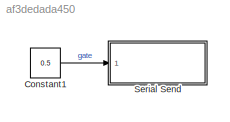
MODEL slx_af3dedada450
KIND model
CONFIG AbsTol = auto
CONFIG EnableMultiTasking = on
CONFIG FixedStep = 1e-6
CONFIG MaxStep = auto
CONFIG MinStep = auto
CONFIG RelTol = 1e-3
CONFIG SampleTimeConstraint = Unconstrained
CONFIG Solver = FixedStepDiscrete
CONFIG SolverName = FixedStepDiscrete
CONFIG StartTime = 0.0
CONFIG StopTime = Inf
BLOCK [Constant] Constant1
  Value = 0.5
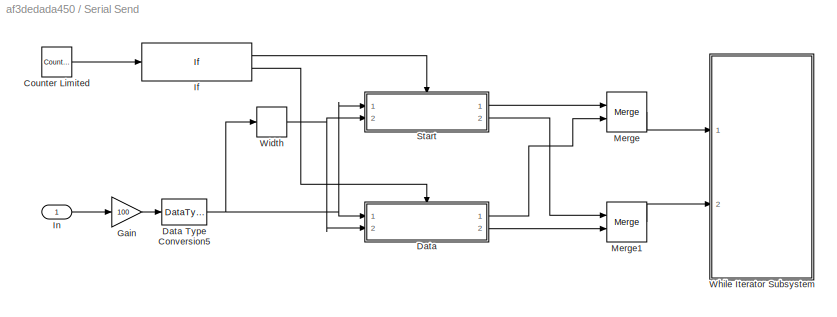
BLOCK [SubSystem] Serial Send
  Ports = [1]
  RequestExecContextInheritance = off
BLOCK [Reference] Serial Send/Counter Limited  REF=simulink/Sources/Counter
Limited
  Ports = [0, 1]
  SourceBlock = simulink/Sources/Counter\nLimited
  SourceProductBaseCode = SL
  SourceProductName = Simulink
  SourceType = Counter Limited
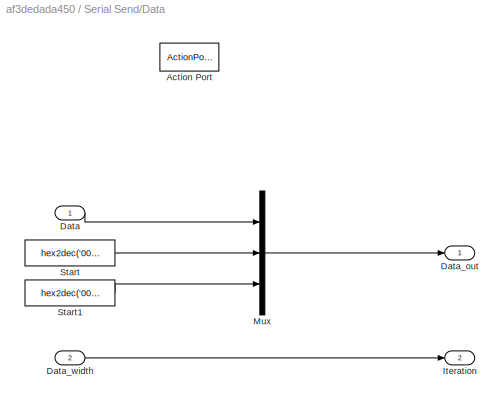
BLOCK [SubSystem] Serial Send/Data
  Ports = [2, 2, 0, 0, 0, 0, 0, 1]
  RequestExecContextInheritance = off
  TreatAsAtomicUnit = on
BLOCK [DataTypeConversion] Serial Send/Data Type Conversion5
  AttributesFormatString = DataType = %<OutDataTypeStr>
  OutDataTypeStr = int16
  RndMeth = Simplest
  SaturateOnIntegerOverflow = off
BLOCK [ActionPort] Serial Send/Data/Action Port
  ActionPortLabel = else
BLOCK [Inport] Serial Send/Data/Data
  IconDisplay = Port number
BLOCK [Outport] Serial Send/Data/Data_out
  IconDisplay = Port number
  VectorParamsAs1DForOutWhenUnconnected = off
BLOCK [Inport] Serial Send/Data/Data_width
  IconDisplay = Port number
  Port = 2
BLOCK [Outport] Serial Send/Data/Iteration
  IconDisplay = Port number
  Port = 2
  VectorParamsAs1DForOutWhenUnconnected = off
BLOCK [Mux] Serial Send/Data/Mux
  DisplayOption = bar
  Inputs = 3
  Ports = [3, 1]
BLOCK [Constant] Serial Send/Data/Start
  OutDataTypeStr = int16
  Value = hex2dec('0000')
BLOCK [Constant] Serial Send/Data/Start1
  OutDataTypeStr = int16
  Value = hex2dec('0000')
BLOCK [Gain] Serial Send/Gain
  Gain = 100
  OutDataTypeStr = Inherit: Inherit via internal rule
  ParamDataTypeStr = Inherit: Inherit via internal rule
  SaturateOnIntegerOverflow = off
BLOCK [If] Serial Send/If
  IfExpression = u1 == 0
  Ports = [1, 2]
BLOCK [Inport] Serial Send/In
  IconDisplay = Port number
BLOCK [Merge] Serial Send/Merge
  Ports = [2, 1]
BLOCK [Merge] Serial Send/Merge1
  Ports = [2, 1]
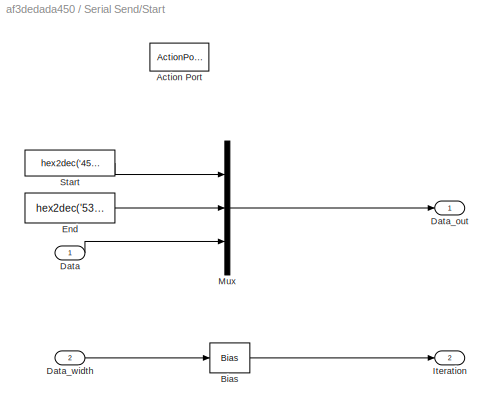
BLOCK [SubSystem] Serial Send/Start
  Ports = [2, 2, 0, 0, 0, 0, 0, 1]
  RequestExecContextInheritance = off
  TreatAsAtomicUnit = on
BLOCK [ActionPort] Serial Send/Start/Action Port
  ActionPortLabel = if(u1 == 0)
BLOCK [Bias] Serial Send/Start/Bias
  Bias = 2
  SaturateOnIntegerOverflow = off
BLOCK [Inport] Serial Send/Start/Data
  IconDisplay = Port number
BLOCK [Outport] Serial Send/Start/Data_out
  IconDisplay = Port number
  VectorParamsAs1DForOutWhenUnconnected = off
BLOCK [Inport] Serial Send/Start/Data_width
  IconDisplay = Port number
  Port = 2
BLOCK [Constant] Serial Send/Start/End
  OutDataTypeStr = int16
  Value = hex2dec('5353')
BLOCK [Outport] Serial Send/Start/Iteration
  IconDisplay = Port number
  Port = 2
  VectorParamsAs1DForOutWhenUnconnected = off
BLOCK [Mux] Serial Send/Start/Mux
  DisplayOption = bar
  Inputs = 3
  Ports = [3, 1]
BLOCK [Constant] Serial Send/Start/Start
  OutDataTypeStr = int16
  Value = hex2dec('4545')
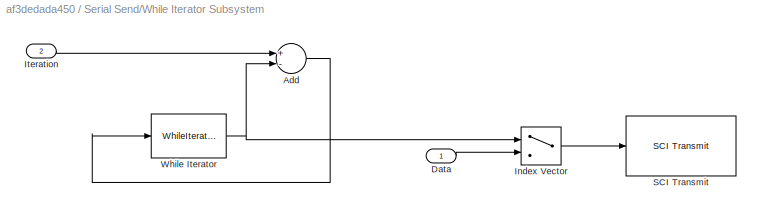
BLOCK [SubSystem] Serial Send/While Iterator Subsystem
  Ports = [2]
  RequestExecContextInheritance = off
  TreatAsAtomicUnit = on
BLOCK [Sum] Serial Send/While Iterator Subsystem/Add
  InputSameDT = off
  Inputs = +-
  OutDataTypeStr = int16
  Ports = [2, 1]
  SaturateOnIntegerOverflow = off
BLOCK [Inport] Serial Send/While Iterator Subsystem/Data
  IconDisplay = Port number
BLOCK [MultiPortSwitch] Serial Send/While Iterator Subsystem/Index Vector
  InputSameDT = off
  Inputs = 1
  OutDataTypeStr = int16
  Ports = [2, 1]
  SaturateOnIntegerOverflow = off
BLOCK [Inport] Serial Send/While Iterator Subsystem/Iteration
  IconDisplay = Port number
  Port = 2
BLOCK [Reference] Serial Send/While Iterator Subsystem/SCI Transmit  REF=c280xlib/SCI Transmit
  Ports = [1]
  SourceBlock = c280xlib/SCI Transmit
  SourceProductBaseCode = TIC2000
  SourceProductName = Embedded Coder Support Package for Texas Instruments C2000 Processors
  SourceType = C28x SCI Transmit
BLOCK [WhileIterator] Serial Send/While Iterator Subsystem/While Iterator
  MaxIters = -1
  OutputDataType = int8
  Ports = [1, 1]
  ShowIterationPort = on
  WhileBlockType = do-while
BLOCK [Width] Serial Send/Width
  DataType = uint16
  OutDataTypeMode = All ports same datatype
LINE Constant1:1 -> Serial Send:1
LINE Serial Send/Counter Limited:1 -> Serial Send/If:1
NET Serial Send/Data Type Conversion5:1 -> Serial Send/Data:1, Serial Send/Start:1, Serial Send/Width:1
LINE Serial Send/Data/Data:1 -> Serial Send/Data/Mux:1
LINE Serial Send/Data/Data_width:1 -> Serial Send/Data/Iteration:1
LINE Serial Send/Data/Mux:1 -> Serial Send/Data/Data_out:1
LINE Serial Send/Data/Start1:1 -> Serial Send/Data/Mux:3
LINE Serial Send/Data/Start:1 -> Serial Send/Data/Mux:2
LINE Serial Send/Data:1 -> Serial Send/Merge:2
LINE Serial Send/Data:2 -> Serial Send/Merge1:2
LINE Serial Send/Gain:1 -> Serial Send/Data Type Conversion5:1
LINE Serial Send/If:1 -> Serial Send/Start:ifaction
LINE Serial Send/If:2 -> Serial Send/Data:ifaction
LINE Serial Send/In:1 -> Serial Send/Gain:1
LINE Serial Send/Merge1:1 -> Serial Send/While Iterator Subsystem:2
LINE Serial Send/Merge:1 -> Serial Send/While Iterator Subsystem:1
LINE Serial Send/Start/Bias:1 -> Serial Send/Start/Iteration:1
LINE Serial Send/Start/Data:1 -> Serial Send/Start/Mux:3
LINE Serial Send/Start/Data_width:1 -> Serial Send/Start/Bias:1
LINE Serial Send/Start/End:1 -> Serial Send/Start/Mux:2
LINE Serial Send/Start/Mux:1 -> Serial Send/Start/Data_out:1
LINE Serial Send/Start/Start:1 -> Serial Send/Start/Mux:1
LINE Serial Send/Start:1 -> Serial Send/Merge:1
LINE Serial Send/Start:2 -> Serial Send/Merge1:1
LINE Serial Send/While Iterator Subsystem/Add:1 -> Serial Send/While Iterator Subsystem/While Iterator:1
LINE Serial Send/While Iterator Subsystem/Data:1 -> Serial Send/While Iterator Subsystem/Index Vector:2
LINE Serial Send/While Iterator Subsystem/Index Vector:1 -> Serial Send/While Iterator Subsystem/SCI Transmit:1
LINE Serial Send/While Iterator Subsystem/Iteration:1 -> Serial Send/While Iterator Subsystem/Add:1
NET Serial Send/While Iterator Subsystem/While Iterator:1 -> Serial Send/While Iterator Subsystem/Add:2, Serial Send/While Iterator Subsystem/Index Vector:1
NET Serial Send/Width:1 -> Serial Send/Data:2, Serial Send/Start:2
note: NET lines group one-source signal fan-out (src -> all destinations, sorted); 1:1 wires keep LINE
